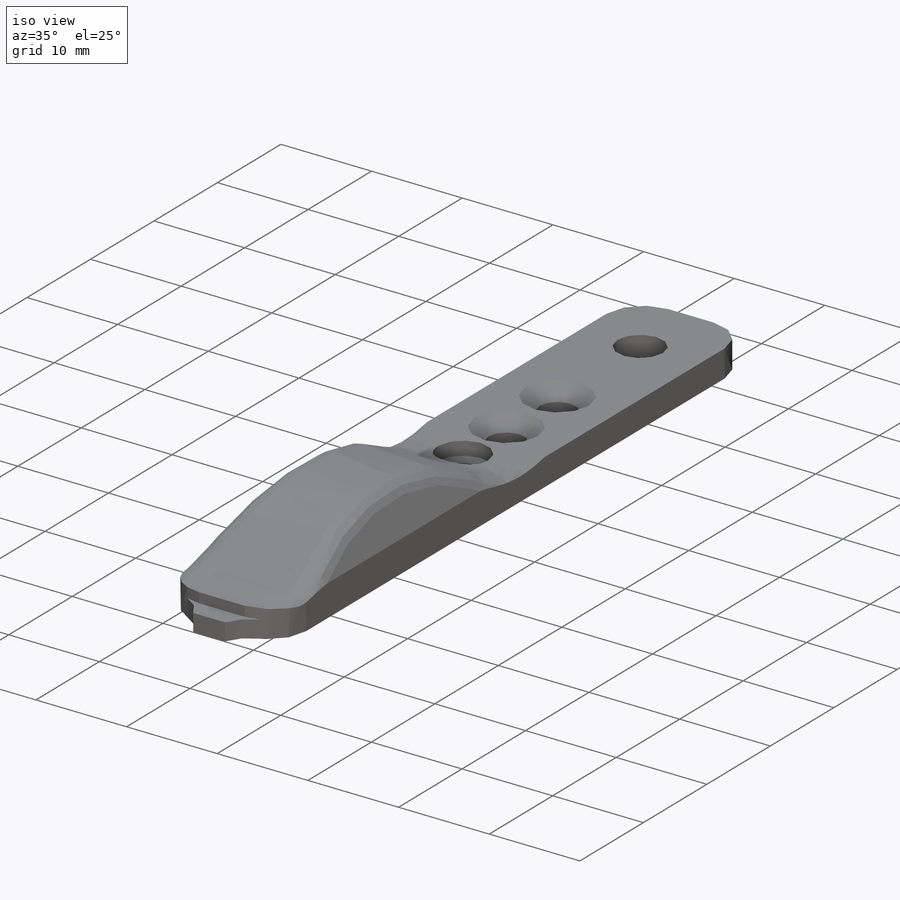
[diagram: iso view]
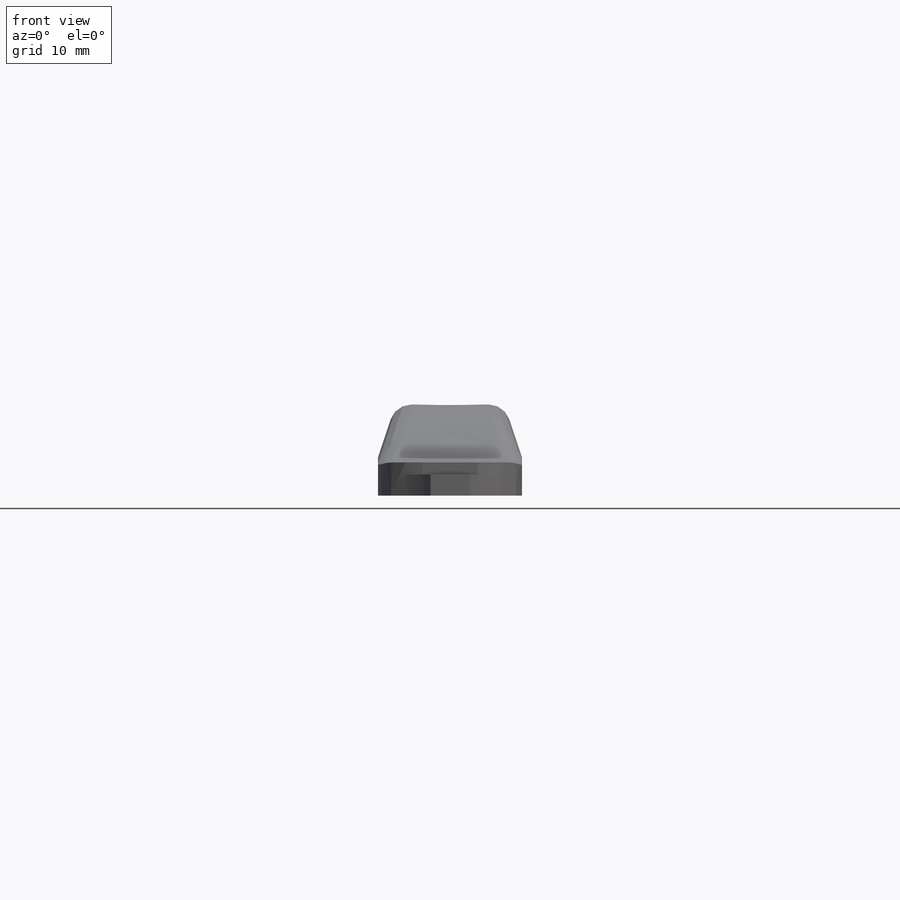
[diagram: front view]
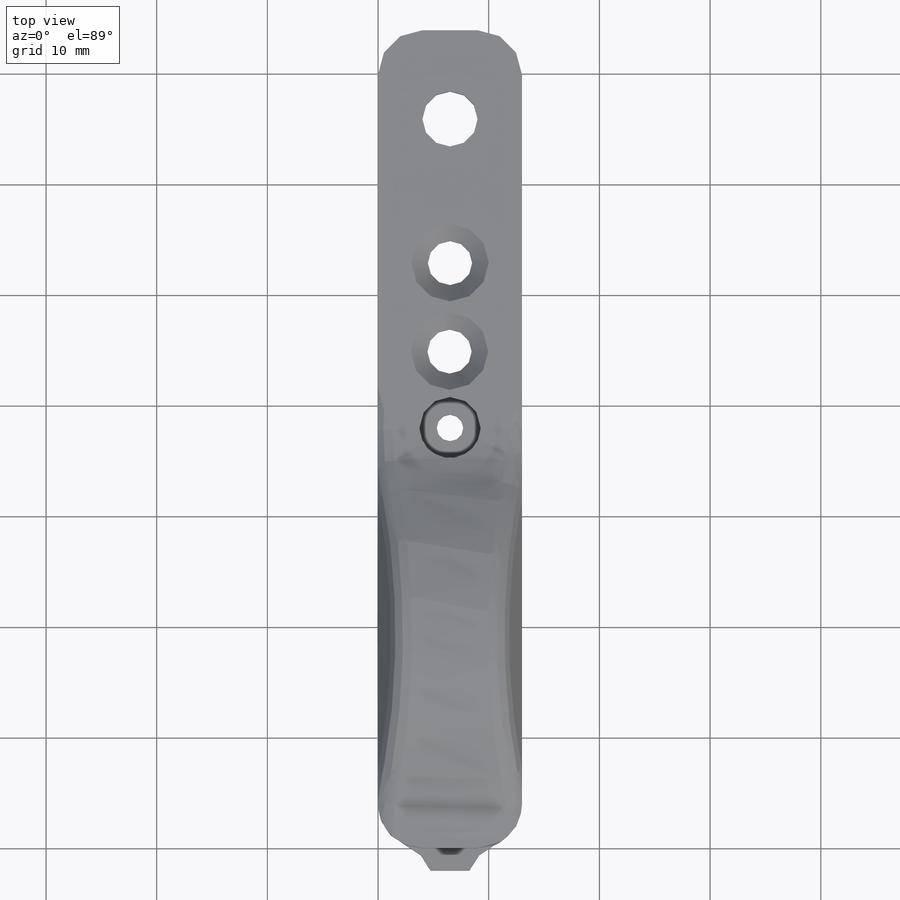
[diagram: top view]
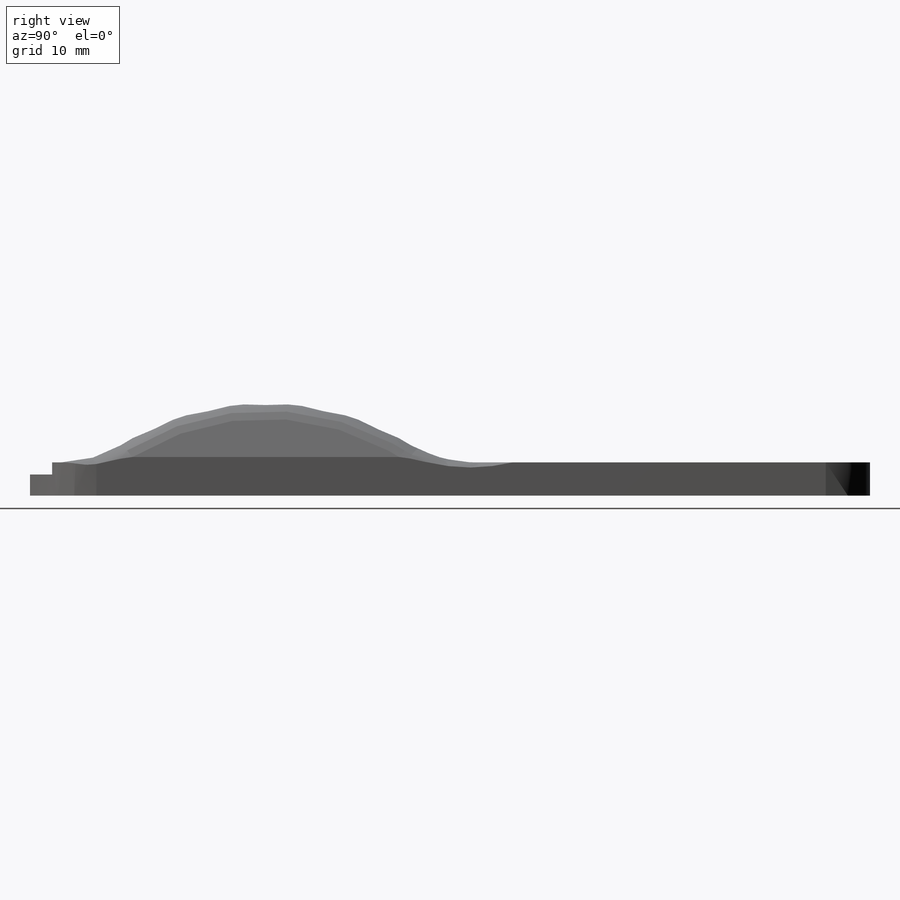
[diagram: right view]
SOLIDWORKS PART (.sldprt)
format: sldprt  version: not decoded by parser v0  size: 506,880 bytes
history: native  units: mm
features: sketch x13, cut_extrude x8, extrude x5, fillet x5, chamfer x3, material x1 + 1 further entry (+11 scaffold rows collapsed)
feature tree (47):
  scaffold x11  (default folders/planes/origin — collapsed)
  material  "Material <not specified>"
  "Annotations"  RD1=1.5mm RD2=1.1mm
  sketch  "Sketch1"  dims[D3=4.0mm D1=73.9mm D2=13.0mm]
  extrude  "Boss-Extrude1"  Depth=3mm
  sketch  "Sketch2"  dims[D5=2.0mm D1=1.0mm D2=1.0mm D3=1.0mm D4=2.0mm]
  extrude  "Boss-Extrude2"  Depth=2mm
  fillet  "Fillet1"  Radius=5mm
  sketch  "Sketch7"  dims[c1.D1=4.0mm c1.D2=4.0mm c1.D3=5.0mm c1.D4=8.0mm c2.D3=21.0mm c2.D5=0.0mm]
  cut_extrude  "Cut-Extrude3"  Depth=10mm
  chamfer  "Chamfer2"  Distance=1.5mm Angle=45deg
  sketch  "Sketch8"  dims[D1=7.0mm D2=7.0mm]
  cut_extrude  "Cut-Extrude4"  Depth=1mm
  chamfer  "Chamfer3"  Distance=1.5mm Angle=45deg
  chamfer  "Chamfer4"  Distance=1.5mm Angle=45deg
  sketch  "Sketch9"  dims[D1=11.5mm D2=4.0mm]
  extrude  "Boss-Extrude3"  Depth=1.8mm
  sketch  "Sketch10"  dims[c1.D1=~4.301943mm c1.D2=~4.301943mm c1.D3=2.4mm c2.D1=6.5mm c2.D2=38.0mm]
  cut_extrude  "Cut-Extrude5"  Depth=11.8mm
  sketch  "Sketch11"  dims[D1=5.5mm]
  cut_extrude  "Cut-Extrude6"  Depth=1.5mm
  sketch  "Sketch12"  dims[c1.D1=~4.570353mm c1.D3=5.0mm c2.D1=6.5mm c2.D2=8.0mm]
  cut_extrude  "Cut-Extrude7"  Depth=10mm
  sketch  "Sketch13"
  cut_extrude  "Cut-Extrude8"  Depth=10mm
  sketch  "Sketch14"  dims[c1.D1=~13.354583mm c1.D2=11.0mm c2.D1=4.75mm c2.D2=4.75mm c2.D3=2.0mm]
  extrude  "Boss-Extrude4"  Depth=1.9mm
  fillet  "Fillet3"  Radius=4mm
  sketch  "Sketch15"
  extrude  "Boss-Extrude5"  Depth=10mm
  sketch  "Sketch16"
  cut_extrude  "Cut-Extrude9"  Depth=18mm
  fillet  "Fillet4"  Radius=10mm
  fillet  "Fillet5"  Radius=10mm
  sketch  "Sketch17"
  cut_extrude  "Cut-Extrude10"  Depth=61mm
  fillet  "Fillet6"  Radius=2mm
decode coverage: 30 of 34 modeling features carry decoded parameters; 1 rows unclassified (native names shown)
note: ~ marks probable driven/reference dimensions
note: suppression state not decoded; provenance and decode notes live in map.json
